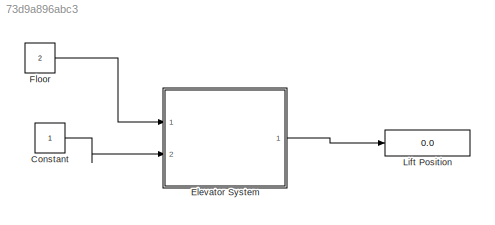
MODEL slx_73d9a896abc3
KIND model
CONFIG AbsTol = auto
CONFIG EnableMultiTasking = off
CONFIG FixedStep = auto
CONFIG MaxStep = auto
CONFIG MinStep = auto
CONFIG RelTol = 1e-3
CONFIG SampleTimeConstraint = Unconstrained
CONFIG Solver = VariableStepAuto
CONFIG SolverName = VariableStepAuto
CONFIG StartTime = 0.0
CONFIG StopTime = 10.0
BLOCK [Constant] Constant
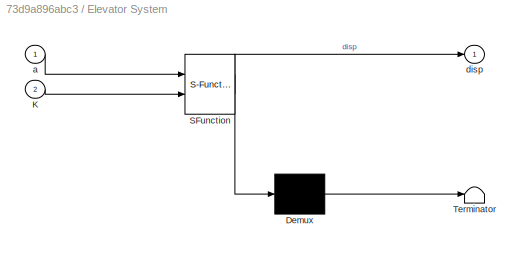
BLOCK [SubSystem] Elevator System
  ErrorFcn = Stateflow.Translate.translate
  PermitHierarchicalResolution = ExplicitOnly
  Ports = [2, 1]
  RequestExecContextInheritance = off
  SFBlockType = Chart
  TreatAsAtomicUnit = on
BLOCK [Demux] Elevator System/ Demux 
  Outputs = 1
  Ports = [1, 1]
BLOCK [S-Function] Elevator System/ SFunction 
  EnableBusSupport = on
  FunctionName = sf_sfun
  PortCounts = [2 2]
  Ports = [2, 2]
  SFcnIsStateOwnerBlock = off
  SFunctionDeploymentMode = off
  Tag = Stateflow S-Function 3
BLOCK [Terminator] Elevator System/ Terminator 
BLOCK [Inport] Elevator System/K
  Port = 2
BLOCK [Inport] Elevator System/a
BLOCK [Outport] Elevator System/disp
BLOCK [Constant] Floor
  Value = 2
BLOCK [Display] Lift Position
  Decimation = 1
  Ports = [1]
LINE Constant:1 -> Elevator System:2
LINE Elevator System:1 -> Lift Position:1
LINE Floor:1 -> Elevator System:1
CHART Elevator System states=10 transitions=14
  STATE_LABEL 'PowerState'
  STATE_LABEL 'ActiveState\nentry:\npower=1;\nexit:\n'
  STATE_LABEL 'IdleState\nentry:\npower=0;\nexit: '
  STATE_LABEL '{power=1}'
  STATE_LABEL 'ActiveState\nentry:\npower=1;\nexit:\n'
  STATE_LABEL 'IdleState\nentry:\npower=0;\nexit: '
  STATE_LABEL 'ElevatorState'
  STATE_LABEL 'FifthF\nen:\ndisp=5;'
  STATE_LABEL 'FourthF\nen:\ndisp=4;'
  STATE_LABEL 'ThirdF\nen:\ndisp=3;'
  STATE_LABEL 'SecondF\nen:\ndisp=2;\n'
  STATE_LABEL 'FirstF\nen:\ndisp=1;'
  STATE_LABEL 'GroundF\nen:\ndisp=0;'
  STATE_LABEL '[a>4 && K==1]'
  STATE_LABEL '[eve==1]'
  STATE_LABEL '[a>3 && K==1]'
  STATE_LABEL '[eve==1]'
  STATE_LABEL '[a>2 && K==1]'
  STATE_LABEL '[eve==1]'
  STATE_LABEL '[a>1 && K==1]'
  STATE_LABEL '[eve==1]'
  STATE_LABEL '[a>0 && K==1]'
  STATE_LABEL '[eve==1]'
  STATE_LABEL 'FifthF\nen:\ndisp=5;'
  STATE_LABEL 'FourthF\nen:\ndisp=4;'
  STATE_LABEL 'ThirdF\nen:\ndisp=3;'
  STATE_LABEL 'SecondF\nen:\ndisp=2;\n'
  STATE_LABEL 'FirstF\nen:\ndisp=1;'
  STATE_LABEL 'GroundF\nen:\ndisp=0;'
CHART  states=0 transitions=0
